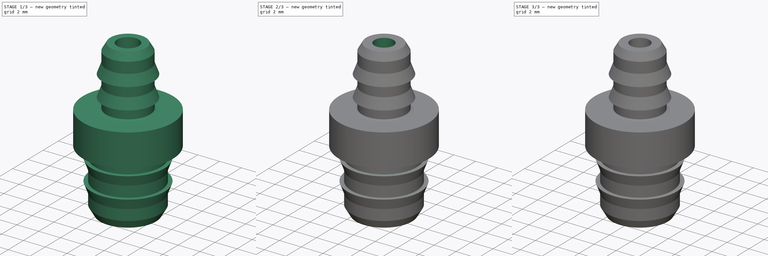
[diagram: build sequence overview — one tinted view per stage of 3, left to right]
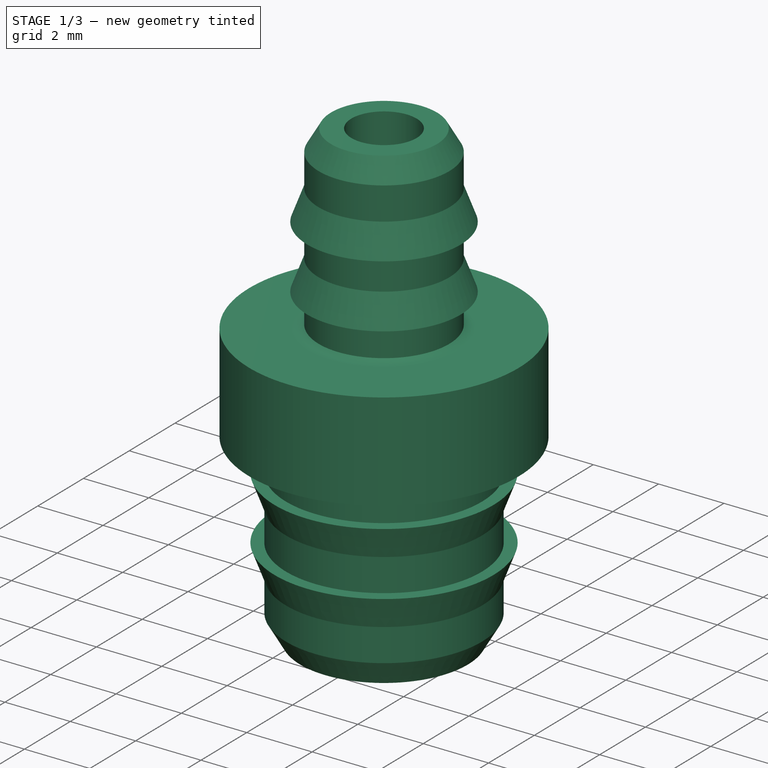
[diagram: stage 1 of 3 — iso view after this stage's code; geometry added in this stage tinted green]
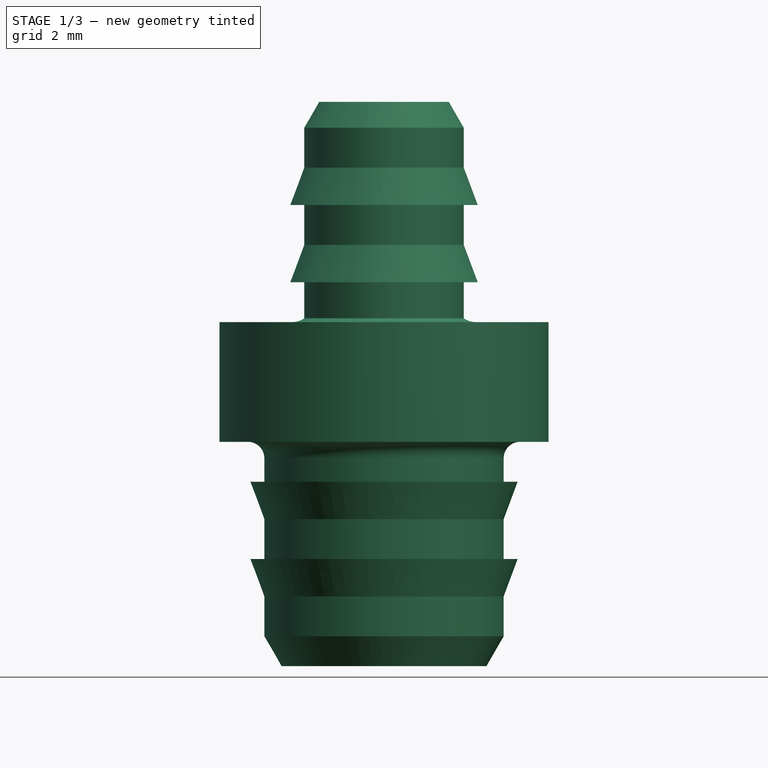
[diagram: stage 1 of 3 — front view after this stage's code; geometry added in this stage tinted green]
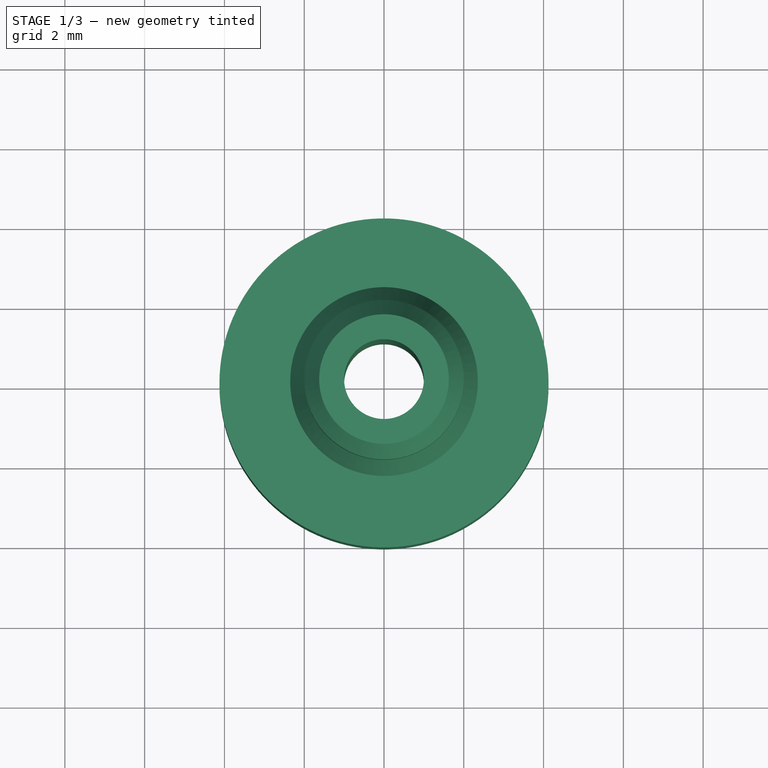
[diagram: stage 1 of 3 — top view after this stage's code; geometry added in this stage tinted green]
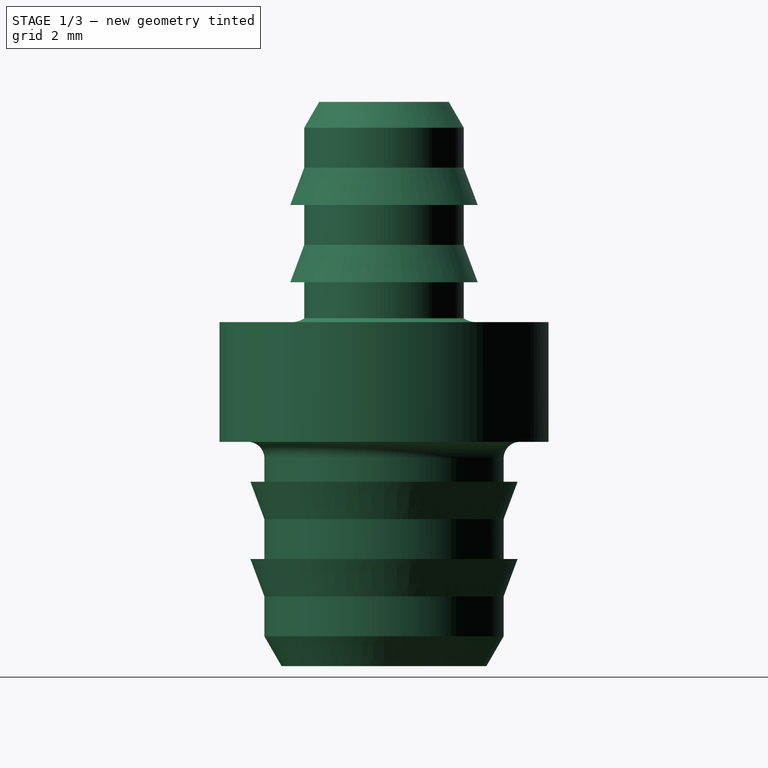
[diagram: stage 1 of 3 — right view after this stage's code; geometry added in this stage tinted green]
FCSTD DOCUMENT  (FreeCAD 0.22R36807 (Git))
Label: tubing connectors
License: Creative Commons Attribution 4.0
LicenseURL: https://creativecommons.org/licenses/by/4.0/
objects: Spreadsheet::Sheet×6, Sketcher::SketchObject×6, PartDesign::Revolution×6, PartDesign::Body×6
note: 24 computed .brp shape members not serialized (recipe doc carries the construction recipe); baked Part::Feature solids carry a one-line shape summary decoded from their .brp

FEATURE [PartDesign::Body] Body004  label="3mm to 6mm barbed connector"
  Group = -> [Revolution004,Sketch005]
  Origin = -> Origin004
  Tip = -> Revolution004
FEATURE [Spreadsheet::Sheet] Spreadsheet003  label="3mm to 6mm barbed connector data"
  cells = A1='end_diameter_1; B1(end_diameter_1)=3.25; A2='end_diameter_2; B2(end_diameter_2)=6; A3='wall_thickness; B3(wall_thickness)=0.75; A4='barb_height; B4(barb_height)=0.35; A5='tubing_diameter_stretch; B5(tubing_diameter_stretch)=0.1
FEATURE [Sketcher::SketchObject] Sketch006
  FullyConstrained = false
  Placement = pos=(0,0,0) rot=(1,0,0;1.5708rad)
  expr: Constraints[25] = <<3.5mm to 6mm barbed connector data>>.wall_thickness
  expr: Constraints[41] = Spreadsheet004.wall_thickness / 2
  expr: Constraints[42] = Spreadsheet004.barb_height
  expr: Constraints[43] = Spreadsheet004.wall_thickness * 4 / 3
  expr: Constraints[48] = Spreadsheet004.wall_thickness * 4 / 3
  expr: Constraints[57] = <<3.5mm to 6mm barbed connector data>>.end_diameter_2 / 2
  expr: Constraints[58] = <<3.5mm to 6mm barbed connector data>>.wall_thickness
  expr: Constraints[59] = <<3.5mm to 6mm barbed connector data>>.wall_thickness
  expr: Constraints[60] = <<3.5mm to 6mm barbed connector data>>.end_diameter_1 / 2
  sketch-geometry (30):
    g0: LineSegment StartX=2.25 StartY=0 StartZ=0 EndX=2.56699 EndY=0 EndZ=0
    g1: LineSegment StartX=3 StartY=0.75 StartZ=0 EndX=3 EndY=1.75 EndZ=0
    g2: LineSegment StartX=3 StartY=1.75 StartZ=0 EndX=3.35 EndY=2.68675 EndZ=0
    g3: LineSegment StartX=3.35 StartY=2.68675 StartZ=0 EndX=3 EndY=2.68675 EndZ=0
    g4: LineSegment StartX=3 StartY=2.68675 StartZ=0 EndX=3 EndY=3.68675 EndZ=0
    g5: LineSegment StartX=3 StartY=3.68675 StartZ=0 EndX=3.35 EndY=4.6235 EndZ=0
    g6: LineSegment StartX=3.35 StartY=4.6235 StartZ=0 EndX=3 EndY=4.6235 EndZ=0
    g7: LineSegment StartX=3 StartY=4.6235 StartZ=0 EndX=3 EndY=5.21177 EndZ=0
    g8: LineSegment StartX=3.41173 StartY=5.6235 StartZ=0 EndX=3.4954 EndY=5.6235 EndZ=0
    g9: LineSegment StartX=3.54603 StartY=8.6235 StartZ=0 EndX=2.31649 EndY=8.6235 EndZ=0
    g10: LineSegment StartX=1.75 StartY=9.18999 StartZ=0 EndX=1.75 EndY=9.6235 EndZ=0
    g11: LineSegment StartX=1.75 StartY=9.6235 StartZ=0 EndX=2.1 EndY=9.6235 EndZ=0
    g12: LineSegment StartX=2.1 StartY=9.6235 StartZ=0 EndX=1.75 EndY=10.5602 EndZ=0
    g13: LineSegment StartX=1.75 StartY=10.5602 StartZ=0 EndX=1.75 EndY=11.5602 EndZ=0
    g14: LineSegment StartX=1.75 StartY=11.5602 StartZ=0 EndX=2.1 EndY=11.5602 EndZ=0
    g15: LineSegment StartX=2.1 StartY=11.5602 StartZ=0 EndX=1.75 EndY=12.497 EndZ=0
    g16: LineSegment StartX=1.75 StartY=12.497 StartZ=0 EndX=1.75 EndY=13.497 EndZ=0
    g17: LineSegment StartX=1.375 StartY=14.1465 StartZ=0 EndX=1 EndY=14.1465 EndZ=0
    g18: LineSegment StartX=2.25 StartY=5.6235 StartZ=0 EndX=2.25 EndY=0 EndZ=0
    g19: LineSegment StartX=1.375 StartY=14.1465 StartZ=0 EndX=1.75 EndY=13.497 EndZ=0
    g20: LineSegment StartX=2.56699 StartY=0 StartZ=0 EndX=3 EndY=0.75 EndZ=0
    g21: LineSegment StartX=2.25 StartY=5.6235 StartZ=0 EndX=1 EndY=6.6235 EndZ=0
    g22: LineSegment StartX=1 StartY=6.6235 StartZ=0 EndX=1 EndY=14.1465 EndZ=0
    g23: ArcOfCircle CenterX=2.31649 CenterY=9.18999 CenterZ=0 NormalX=0 NormalY=0 NormalZ=1 AngleXU=0 Radius=0.566492 StartAngle=3.14159 EndAngle=4.71239
    g24: GeomPoint X=1.75 Y=8.6235 Z=0
    g25: LineSegment StartX=4.125 StartY=6.2531 StartZ=0 EndX=4.125 EndY=8.04453 EndZ=0
    g26: ArcOfCircle CenterX=3.41173 CenterY=5.21177 CenterZ=0 NormalX=0 NormalY=0 NormalZ=1 AngleXU=0 Radius=0.411733 StartAngle=1.5708 EndAngle=3.14159
    g27: GeomPoint X=3 Y=5.6235 Z=0
    g28: ArcOfCircle CenterX=3.4954 CenterY=6.2531 CenterZ=0 NormalX=0 NormalY=0 NormalZ=1 AngleXU=0 Radius=0.629602 StartAngle=4.71239 EndAngle=6.28319
    g29: ArcOfCircle CenterX=3.54603 CenterY=8.04453 CenterZ=0 NormalX=0 NormalY=0 NormalZ=1 AngleXU=0 Radius=0.578973 StartAngle=0 EndAngle=1.5708
  constraints (73):
    c: Vertical(g1)
    c: Coincident(g1,g2)
    c: Coincident(g2,g3)
    c: Horizontal(g3)
    c: Coincident(g3,g4)
    c: Vertical(g4)
    c: Coincident(g4,g5)
    c: Coincident(g5,g6)
    c: Horizontal(g6)
    c: Coincident(g6,g7)
    c: Vertical(g7)
    c: Horizontal(g8)
    c: Horizontal(g9)
    c: Vertical(g10)
    c: Coincident(g10,g11)
    c: Horizontal(g11)
    c: Coincident(g11,g12)
    c: Coincident(g12,g13)
    c: Vertical(g13)
    c: Coincident(g13,g14)
    c: Horizontal(g14)
    c: Coincident(g14,g15)
    c: Coincident(g15,g16)
    c: Vertical(g16)
    c: Vertical(g18)
    c: DistanceX(g17,g16) = 0.75
    c: Vertical(g13,g15)
    c: Vertical(g1,g3)
    c: Vertical(g4,g6)
    c: Vertical(g12,g10)
    c: Vertical(g5,g2)
    c: Vertical(g11,g14)
    c: Equal(g6,g11)
    c: Equal(g1,g4)
    c: Equal(g16,g13)
    c: Equal(g15,g12)
    c: Equal(g12,g5)
    c: Equal(g5,g2)
    c: Horizontal(g17)
    c: Coincident(g17,g19)
    c: Coincident(g19,g16)
    c: DistanceX(g17,g17) = 0.375
    c: DistanceX(g14,g14) = 0.35
    c: DistanceY(g1,g1) = 1
    c: Coincident(g0,g20)
    c: Coincident(g20,g1)
    c: Horizontal(g0)
    c: Angle(g-1,g20) = 1.0472
    c: Distance(g2) = 1
    c: Angle(g17,g19) = 2.0944
    c: Horizontal(g-1,g0)
    c: Coincident(g18,g0)
    c: Horizontal(g18,g27)
    c: Coincident(g18,g21)
    c: Coincident(g21,g22)
    c: Coincident(g22,g17)
    c: Vertical(g22)
    c: DistanceX(g-1,g1) = 3
    c: DistanceX(g0,g1) = 0.75
    c: DistanceY(g0,g1) = 0.75
    c: DistanceX(g-1,g16) = 1.75
    c: PointOnObject(g24,g10)
    c: PointOnObject(g24,g9)
    c: Tangent(g10,g23) = 1.5708
    c: Tangent(g9,g23) = 1.5708
    c: PointOnObject(g27,g7)
    c: PointOnObject(g27,g8)
    c: Tangent(g7,g26) = 1.5708
    c: Tangent(g8,g26) = 1.5708
    c: Tangent(g8,g28) = -1.5708
    c: Tangent(g25,g28) = -1.5708
    c: Tangent(g25,g29) = -1.5708
    c: Tangent(g9,g29) = -1.5708
FEATURE [PartDesign::Revolution] Revolution005
  Angle = 360
  Angle2 = 60
  Axis = (0,2e-16,1)
  Base = (0,0,0)
  Placement = pos=(0,0,0) rot=(1,0,0;1.5708rad)
  Profile = -> Sketch006
  ReferenceAxis = -> Sketch006 [V_Axis]
  Reversed = true
  Suppressed = false
  Type = 0
FEATURE [PartDesign::Body] Body005  label="3.5mm to 6mm barbed connector"
  Group = -> [Revolution005,Sketch006]
  Origin = -> Origin005
  Tip = -> Revolution005
FEATURE [Spreadsheet::Sheet] Spreadsheet004  label="3.5mm to 6mm barbed connector data"
  cells = A1='end_diameter_1; B1(end_diameter_1)=3.5; A2='end_diameter_2; B2(end_diameter_2)=6; A3='wall_thickness; B3(wall_thickness)=0.75; A4='barb_height; B4(barb_height)=0.35; A5='tubing_diameter_stretch; B5(tubing_diameter_stretch)=0.1
FEATURE [Sketcher::SketchObject] Sketch007
  FullyConstrained = true
  Placement = pos=(0,0,0) rot=(1,0,0;1.5708rad)
  expr: Constraints[36] = <<4mm to 6mm barbed connector data>>.wall_thickness
  expr: Constraints[60] = Spreadsheet005.wall_thickness / 2
  expr: Constraints[61] = Spreadsheet005.barb_height
  expr: Constraints[62] = Spreadsheet005.wall_thickness * 4 / 3
  expr: Constraints[67] = Spreadsheet005.wall_thickness * 4 / 3
  expr: Constraints[76] = <<4mm to 6mm barbed connector data>>.end_diameter_2 / 2
  expr: Constraints[77] = <<4mm to 6mm barbed connector data>>.wall_thickness
  expr: Constraints[78] = <<4mm to 6mm barbed connector data>>.wall_thickness
  expr: Constraints[79] = <<4mm to 6mm barbed connector data>>.end_diameter_1 / 2
  expr: Constraints[83] = <<4mm to 6mm barbed connector data>>.end_diameter_2 / 2 + <<4mm to 6mm barbed connector data>>.wall_thickness * 1.5
  sketch-geometry (28):
    g0: LineSegment StartX=2.25 StartY=0 StartZ=0 EndX=2.56699 EndY=0 EndZ=0
    g1: LineSegment StartX=3 StartY=0.75 StartZ=0 EndX=3 EndY=1.75 EndZ=0
    g2: LineSegment StartX=3 StartY=1.75 StartZ=0 EndX=3.35 EndY=2.68675 EndZ=0
    g3: LineSegment StartX=3.35 StartY=2.68675 StartZ=0 EndX=3 EndY=2.68675 EndZ=0
    g4: LineSegment StartX=3 StartY=2.68675 StartZ=0 EndX=3 EndY=3.68675 EndZ=0
    g5: LineSegment StartX=3 StartY=3.68675 StartZ=0 EndX=3.35 EndY=4.6235 EndZ=0
    g6: LineSegment StartX=3.35 StartY=4.6235 StartZ=0 EndX=3 EndY=4.6235 EndZ=0
    g7: LineSegment StartX=3 StartY=4.6235 StartZ=0 EndX=3 EndY=5.6235 EndZ=0
    g8: LineSegment StartX=3 StartY=5.6235 StartZ=0 EndX=4.125 EndY=5.6235 EndZ=0
    g9: LineSegment StartX=4.125 StartY=5.6235 StartZ=0 EndX=4.125 EndY=6.6235 EndZ=0
    g10: LineSegment StartX=4.125 StartY=6.6235 StartZ=0 EndX=3 EndY=6.6235 EndZ=0
    g11: LineSegment StartX=3 StartY=6.6235 StartZ=0 EndX=3 EndY=7.6235 EndZ=0
    g12: LineSegment StartX=3 StartY=7.6235 StartZ=0 EndX=4.125 EndY=7.6235 EndZ=0
    g13: LineSegment StartX=4.125 StartY=7.6235 StartZ=0 EndX=4.125 EndY=8.6235 EndZ=0
    g14: LineSegment StartX=4.125 StartY=8.6235 StartZ=0 EndX=2 EndY=8.6235 EndZ=0
    g15: LineSegment StartX=2 StartY=8.6235 StartZ=0 EndX=2 EndY=9.6235 EndZ=0
    g16: LineSegment StartX=2 StartY=9.6235 StartZ=0 EndX=2.35 EndY=9.6235 EndZ=0
    g17: LineSegment StartX=2.35 StartY=9.6235 StartZ=0 EndX=2 EndY=10.5602 EndZ=0
    g18: LineSegment StartX=2 StartY=10.5602 StartZ=0 EndX=2 EndY=11.5602 EndZ=0
    g19: LineSegment StartX=2 StartY=11.5602 StartZ=0 EndX=2.35 EndY=11.5602 EndZ=0
    g20: LineSegment StartX=2.35 StartY=11.5602 StartZ=0 EndX=2 EndY=12.497 EndZ=0
    g21: LineSegment StartX=2 StartY=12.497 StartZ=0 EndX=2 EndY=13.497 EndZ=0
    g22: LineSegment StartX=1.625 StartY=14.1465 StartZ=0 EndX=1.25 EndY=14.1465 EndZ=0
    g23: LineSegment StartX=2.25 StartY=5.6235 StartZ=0 EndX=2.25 EndY=0 EndZ=0
    g24: LineSegment StartX=1.625 StartY=14.1465 StartZ=0 EndX=2 EndY=13.497 EndZ=0
    g25: LineSegment StartX=2.56699 StartY=0 StartZ=0 EndX=3 EndY=0.75 EndZ=0
    g26: LineSegment StartX=2.25 StartY=5.6235 StartZ=0 EndX=1.25 EndY=6.6235 EndZ=0
    g27: LineSegment StartX=1.25 StartY=6.6235 StartZ=0 EndX=1.25 EndY=14.1465 EndZ=0
  constraints (84):
    c: Vertical(g1)
    c: Coincident(g1,g2)
    c: Coincident(g2,g3)
    c: Horizontal(g3)
    c: Coincident(g3,g4)
    c: Vertical(g4)
    c: Coincident(g4,g5)
    c: Coincident(g5,g6)
    c: Horizontal(g6)
    c: Coincident(g6,g7)
    c: Vertical(g7)
    c: Coincident(g7,g8)
    c: Horizontal(g8)
    c: Coincident(g8,g9)
    c: Coincident(g9,g10)
    c: Horizontal(g10)
    c: Coincident(g10,g11)
    c: Coincident(g11,g12)
    c: Horizontal(g12)
    c: Coincident(g12,g13)
    c: Vertical(g13)
    c: Coincident(g13,g14)
    c: Horizontal(g14)
    c: Coincident(g14,g15)
    c: Vertical(g15)
    c: Coincident(g15,g16)
    c: Horizontal(g16)
    c: Coincident(g16,g17)
    c: Coincident(g17,g18)
    c: Vertical(g18)
    c: Coincident(g18,g19)
    c: Horizontal(g19)
    c: Coincident(g19,g20)
    c: Coincident(g20,g21)
    c: Vertical(g21)
    c: Vertical(g23)
    c: DistanceX(g22,g21) = 0.75
    c: Vertical(g18,g20)
    c: Vertical(g1,g3)
    c: Vertical(g4,g6)
    c: Vertical(g17,g15)
    c: Vertical(g11)
    c: Vertical(g5,g2)
    c: Vertical(g16,g19)
    c: Equal(g6,g16)
    c: Vertical(g9)
    c: Vertical(g9,g12)
    c: Equal(g9,g13)
    c: Equal(g1,g4)
    c: Equal(g7,g4)
    c: Equal(g21,g18)
    c: Equal(g18,g15)
    c: Equal(g15,g7)
    c: Equal(g20,g17)
    c: Equal(g17,g5)
    c: Equal(g5,g2)
    c: Equal(g13,g7)
    c: Horizontal(g22)
    c: Coincident(g22,g24)
    c: Coincident(g24,g21)
    c: DistanceX(g22,g22) = 0.375
    c: DistanceX(g19,g19) = 0.35
    c: DistanceY(g1,g1) = 1
    c: Coincident(g0,g25)
    c: Coincident(g25,g1)
    c: Horizontal(g0)
    c: Angle(g-1,g25) = 1.0472
    c: Distance(g2) = 1
    c: Angle(g22,g24) = 2.0944
    c: Horizontal(g-1,g0)
    c: Coincident(g23,g0)
    c: Horizontal(g23,g7)
    c: Coincident(g23,g26)
    c: Coincident(g26,g27)
    c: Coincident(g27,g22)
    c: Vertical(g27)
    c: DistanceX(g-1,g1) = 3
    c: DistanceX(g0,g1) = 0.75
    c: DistanceY(g0,g1) = 0.75
    c: DistanceX(g-1,g21) = 2
    c: Vertical(g7,g11)
    c: Equal(g11,g7)
    c: Horizontal(g26,g10)
    c: DistanceX(g-1,g13) = 4.125
FEATURE [PartDesign::Revolution] Revolution006
  Angle = 360
  Angle2 = 60
  Axis = (0,2e-16,1)
  Base = (0,0,0)
  Placement = pos=(0,0,0) rot=(1,0,0;1.5708rad)
  Profile = -> Sketch007
  ReferenceAxis = -> Sketch007 [V_Axis]
  Reversed = true
  Suppressed = false
  Type = 0
FEATURE [PartDesign::Body] Body006  label="4mm to 6mm barbed connector"
  Group = -> [Revolution006,Sketch007]
  Origin = -> Origin006
  Tip = -> Revolution006
FEATURE [Spreadsheet::Sheet] Spreadsheet005  label="4mm to 6mm barbed connector data"
  cells = A1='end_diameter_1; B1(end_diameter_1)=4; A2='end_diameter_2; B2(end_diameter_2)=6; A3='wall_thickness; B3(wall_thickness)=0.75; A4='barb_height; B4(barb_height)=0.35; A5='tubing_diameter_stretch; B5(tubing_diameter_stretch)=0.1
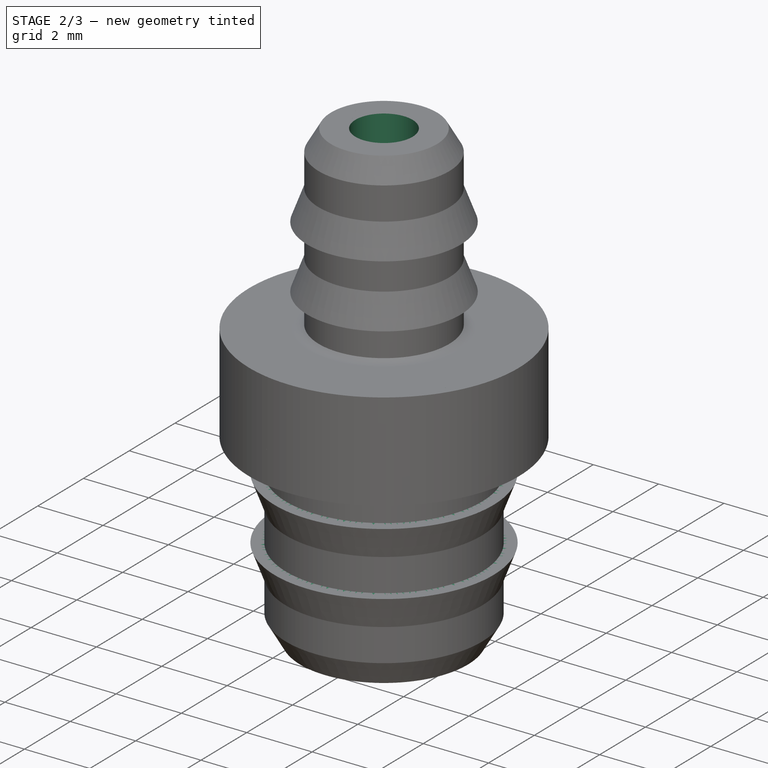
[diagram: stage 2 of 3 — iso view after this stage's code; geometry added in this stage tinted green]
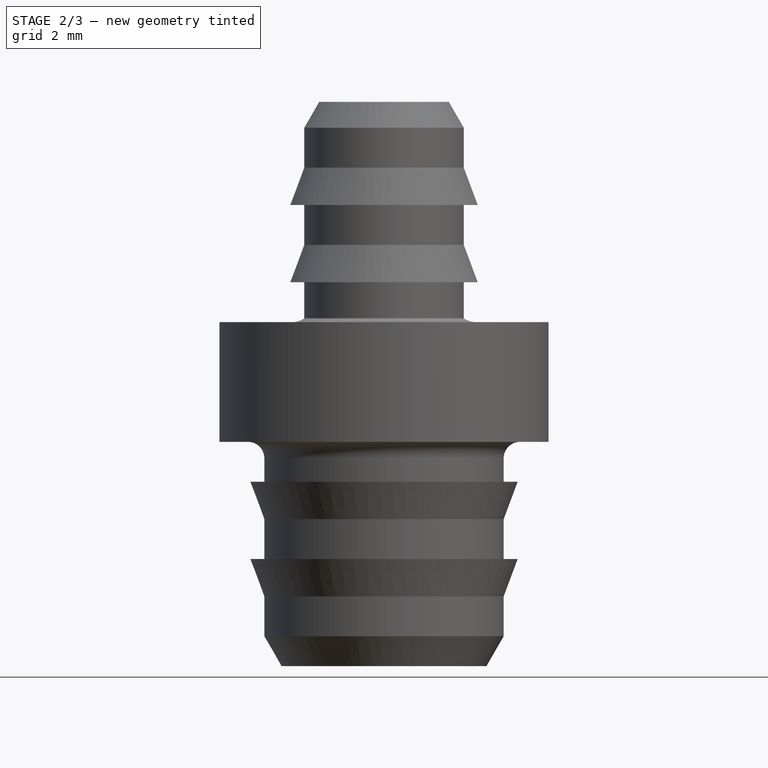
[diagram: stage 2 of 3 — front view after this stage's code; geometry added in this stage tinted green]
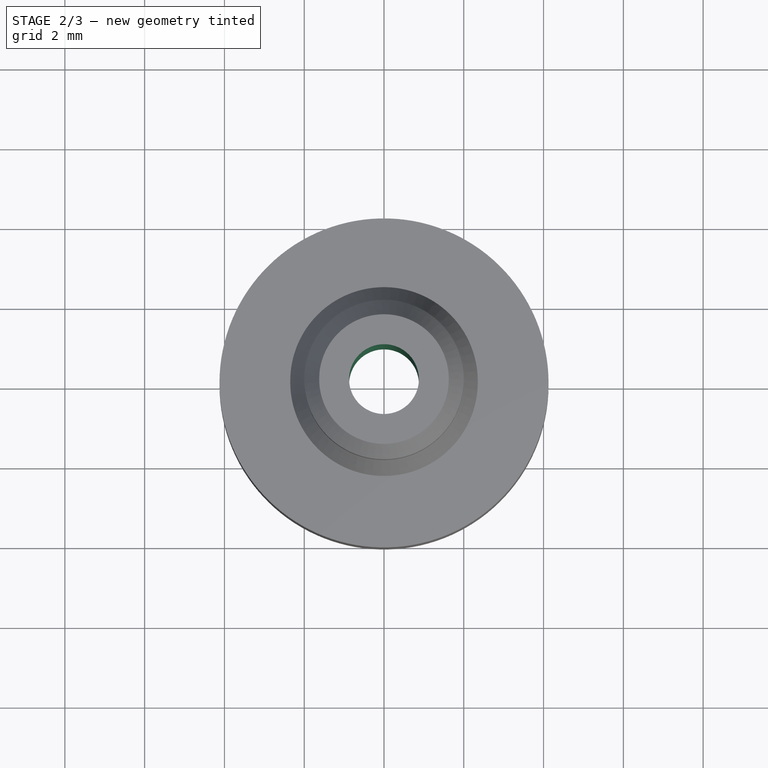
[diagram: stage 2 of 3 — top view after this stage's code; geometry added in this stage tinted green]
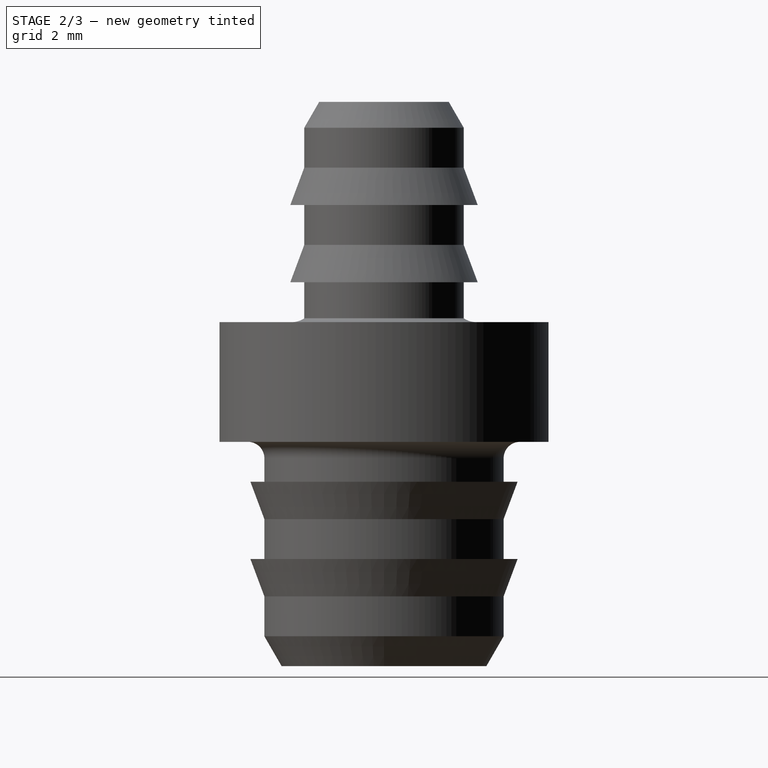
[diagram: stage 2 of 3 — right view after this stage's code; geometry added in this stage tinted green]
FEATURE [PartDesign::Body] Body002  label="3mm to 5.25mm barbed connector"
  Group = -> [Revolution002,Sketch003]
  Origin = -> Origin002
  Tip = -> Revolution002
FEATURE [Spreadsheet::Sheet] Spreadsheet001  label="3mm to 5.25mm barbed connector data"
  cells = A1='end_diameter_1; B1(end_diameter_1)=3.25; A2='end_diameter_2; B2(end_diameter_2)=5.25; A3='wall_thickness; B3(wall_thickness)=0.75; A4='barb_height; B4(barb_height)=0.35; A5='tubing_diameter_stretch; B5(tubing_diameter_stretch)=0.1
FEATURE [Sketcher::SketchObject] Sketch004
  FullyConstrained = true
  Placement = pos=(0,0,0) rot=(1,0,0;1.5708rad)
  expr: Constraints[36] = <<3mm to 5.5mm barbed connector data>>.wall_thickness
  expr: Constraints[60] = Spreadsheet002.wall_thickness / 2
  expr: Constraints[61] = Spreadsheet002.barb_height
  expr: Constraints[62] = Spreadsheet002.wall_thickness * 4 / 3
  expr: Constraints[67] = Spreadsheet002.wall_thickness * 4 / 3
  expr: Constraints[76] = <<3mm to 5.5mm barbed connector data>>.end_diameter_2 / 2
  expr: Constraints[77] = <<3mm to 5.5mm barbed connector data>>.wall_thickness
  expr: Constraints[78] = <<3mm to 5.5mm barbed connector data>>.wall_thickness
  expr: Constraints[79] = <<3mm to 5.5mm barbed connector data>>.end_diameter_1 / 2
  expr: Constraints[83] = <<3mm to 5.5mm barbed connector data>>.end_diameter_2 / 2 + <<3mm to 5.5mm barbed connector data>>.wall_thickness * 1.5
  sketch-geometry (28):
    g0: LineSegment StartX=2 StartY=0 StartZ=0 EndX=2.31699 EndY=0 EndZ=0
    g1: LineSegment StartX=2.75 StartY=0.75 StartZ=0 EndX=2.75 EndY=1.75 EndZ=0
    g2: LineSegment StartX=2.75 StartY=1.75 StartZ=0 EndX=3.1 EndY=2.68675 EndZ=0
    g3: LineSegment StartX=3.1 StartY=2.68675 StartZ=0 EndX=2.75 EndY=2.68675 EndZ=0
    g4: LineSegment StartX=2.75 StartY=2.68675 StartZ=0 EndX=2.75 EndY=3.68675 EndZ=0
    g5: LineSegment StartX=2.75 StartY=3.68675 StartZ=0 EndX=3.1 EndY=4.6235 EndZ=0
    g6: LineSegment StartX=3.1 StartY=4.6235 StartZ=0 EndX=2.75 EndY=4.6235 EndZ=0
    g7: LineSegment StartX=2.75 StartY=4.6235 StartZ=0 EndX=2.75 EndY=5.6235 EndZ=0
    g8: LineSegment StartX=2.75 StartY=5.6235 StartZ=0 EndX=3.875 EndY=5.6235 EndZ=0
    g9: LineSegment StartX=3.875 StartY=5.6235 StartZ=0 EndX=3.875 EndY=6.6235 EndZ=0
    g10: LineSegment StartX=3.875 StartY=6.6235 StartZ=0 EndX=2.75 EndY=6.6235 EndZ=0
    g11: LineSegment StartX=2.75 StartY=6.6235 StartZ=0 EndX=2.75 EndY=7.6235 EndZ=0
    g12: LineSegment StartX=2.75 StartY=7.6235 StartZ=0 EndX=3.875 EndY=7.6235 EndZ=0
    g13: LineSegment StartX=3.875 StartY=7.6235 StartZ=0 EndX=3.875 EndY=8.6235 EndZ=0
    g14: LineSegment StartX=3.875 StartY=8.6235 StartZ=0 EndX=1.625 EndY=8.6235 EndZ=0
    g15: LineSegment StartX=1.625 StartY=8.6235 StartZ=0 EndX=1.625 EndY=9.6235 EndZ=0
    g16: LineSegment StartX=1.625 StartY=9.6235 StartZ=0 EndX=1.975 EndY=9.6235 EndZ=0
    g17: LineSegment StartX=1.975 StartY=9.6235 StartZ=0 EndX=1.625 EndY=10.5602 EndZ=0
    g18: LineSegment StartX=1.625 StartY=10.5602 StartZ=0 EndX=1.625 EndY=11.5602 EndZ=0
    g19: LineSegment StartX=1.625 StartY=11.5602 StartZ=0 EndX=1.975 EndY=11.5602 EndZ=0
    g20: LineSegment StartX=1.975 StartY=11.5602 StartZ=0 EndX=1.625 EndY=12.497 EndZ=0
    g21: LineSegment StartX=1.625 StartY=12.497 StartZ=0 EndX=1.625 EndY=13.497 EndZ=0
    g22: LineSegment StartX=1.25 StartY=14.1465 StartZ=0 EndX=0.875 EndY=14.1465 EndZ=0
    g23: LineSegment StartX=2 StartY=5.6235 StartZ=0 EndX=2 EndY=0 EndZ=0
    g24: LineSegment StartX=1.25 StartY=14.1465 StartZ=0 EndX=1.625 EndY=13.497 EndZ=0
    g25: LineSegment StartX=2.31699 StartY=0 StartZ=0 EndX=2.75 EndY=0.75 EndZ=0
    g26: LineSegment StartX=2 StartY=5.6235 StartZ=0 EndX=0.875 EndY=6.6235 EndZ=0
    g27: LineSegment StartX=0.875 StartY=6.6235 StartZ=0 EndX=0.875 EndY=14.1465 EndZ=0
  constraints (84):
    c: Vertical(g1)
    c: Coincident(g1,g2)
    c: Coincident(g2,g3)
    c: Horizontal(g3)
    c: Coincident(g3,g4)
    c: Vertical(g4)
    c: Coincident(g4,g5)
    c: Coincident(g5,g6)
    c: Horizontal(g6)
    c: Coincident(g6,g7)
    c: Vertical(g7)
    c: Coincident(g7,g8)
    c: Horizontal(g8)
    c: Coincident(g8,g9)
    c: Coincident(g9,g10)
    c: Horizontal(g10)
    c: Coincident(g10,g11)
    c: Coincident(g11,g12)
    c: Horizontal(g12)
    c: Coincident(g12,g13)
    c: Vertical(g13)
    c: Coincident(g13,g14)
    c: Horizontal(g14)
    c: Coincident(g14,g15)
    c: Vertical(g15)
    c: Coincident(g15,g16)
    c: Horizontal(g16)
    c: Coincident(g16,g17)
    c: Coincident(g17,g18)
    c: Vertical(g18)
    c: Coincident(g18,g19)
    c: Horizontal(g19)
    c: Coincident(g19,g20)
    c: Coincident(g20,g21)
    c: Vertical(g21)
    c: Vertical(g23)
    c: DistanceX(g22,g21) = 0.75
    c: Vertical(g18,g20)
    c: Vertical(g1,g3)
    c: Vertical(g4,g6)
    c: Vertical(g17,g15)
    c: Vertical(g11)
    c: Vertical(g5,g2)
    c: Vertical(g16,g19)
    c: Equal(g6,g16)
    c: Vertical(g9)
    c: Vertical(g9,g12)
    c: Equal(g9,g13)
    c: Equal(g1,g4)
    c: Equal(g7,g4)
    c: Equal(g21,g18)
    c: Equal(g18,g15)
    c: Equal(g15,g7)
    c: Equal(g20,g17)
    c: Equal(g17,g5)
    c: Equal(g5,g2)
    c: Equal(g13,g7)
    c: Horizontal(g22)
    c: Coincident(g22,g24)
    c: Coincident(g24,g21)
    c: DistanceX(g22,g22) = 0.375
    c: DistanceX(g19,g19) = 0.35
    c: DistanceY(g1,g1) = 1
    c: Coincident(g0,g25)
    c: Coincident(g25,g1)
    c: Horizontal(g0)
    c: Angle(g-1,g25) = 1.0472
    c: Distance(g2) = 1
    c: Angle(g22,g24) = 2.0944
    c: Horizontal(g-1,g0)
    c: Coincident(g23,g0)
    c: Horizontal(g23,g7)
    c: Coincident(g23,g26)
    c: Coincident(g26,g27)
    c: Coincident(g27,g22)
    c: Vertical(g27)
    c: DistanceX(g-1,g1) = 2.75
    c: DistanceX(g0,g1) = 0.75
    c: DistanceY(g0,g1) = 0.75
    c: DistanceX(g-1,g21) = 1.625
    c: Vertical(g7,g11)
    c: Equal(g11,g7)
    c: Horizontal(g26,g10)
    c: DistanceX(g-1,g13) = 3.875
FEATURE [PartDesign::Revolution] Revolution003
  Angle = 360
  Angle2 = 60
  Axis = (0,2e-16,1)
  Base = (0,0,0)
  Placement = pos=(0,0,0) rot=(1,0,0;1.5708rad)
  Profile = -> Sketch004
  ReferenceAxis = -> Sketch004 [V_Axis]
  Reversed = true
  Suppressed = false
  Type = 0
FEATURE [PartDesign::Body] Body003  label="3mm to 5.5mm barbed connector"
  Group = -> [Revolution003,Sketch004]
  Origin = -> Origin003
  Tip = -> Revolution003
FEATURE [Spreadsheet::Sheet] Spreadsheet002  label="3mm to 5.5mm barbed connector data"
  cells = A1='end_diameter_1; B1(end_diameter_1)=3.25; A2='end_diameter_2; B2(end_diameter_2)=5.5; A3='wall_thickness; B3(wall_thickness)=0.75; A4='barb_height; B4(barb_height)=0.35; A5='tubing_diameter_stretch; B5(tubing_diameter_stretch)=0.1
FEATURE [Sketcher::SketchObject] Sketch005
  FullyConstrained = true
  Placement = pos=(0,0,0) rot=(1,0,0;1.5708rad)
  expr: Constraints[36] = <<3mm to 6mm barbed connector data>>.wall_thickness
  expr: Constraints[60] = Spreadsheet003.wall_thickness / 2
  expr: Constraints[61] = Spreadsheet003.barb_height
  expr: Constraints[62] = Spreadsheet003.wall_thickness * 4 / 3
  expr: Constraints[67] = Spreadsheet003.wall_thickness * 4 / 3
  expr: Constraints[76] = <<3mm to 6mm barbed connector data>>.end_diameter_2 / 2
  expr: Constraints[77] = <<3mm to 6mm barbed connector data>>.wall_thickness
  expr: Constraints[78] = <<3mm to 6mm barbed connector data>>.wall_thickness
  expr: Constraints[79] = <<3mm to 6mm barbed connector data>>.end_diameter_1 / 2
  expr: Constraints[83] = <<3mm to 6mm barbed connector data>>.end_diameter_2 / 2 + <<3mm to 6mm barbed connector data>>.wall_thickness * 1.5
  sketch-geometry (28):
    g0: LineSegment StartX=2.25 StartY=0 StartZ=0 EndX=2.56699 EndY=0 EndZ=0
    g1: LineSegment StartX=3 StartY=0.75 StartZ=0 EndX=3 EndY=1.75 EndZ=0
    g2: LineSegment StartX=3 StartY=1.75 StartZ=0 EndX=3.35 EndY=2.68675 EndZ=0
    g3: LineSegment StartX=3.35 StartY=2.68675 StartZ=0 EndX=3 EndY=2.68675 EndZ=0
    g4: LineSegment StartX=3 StartY=2.68675 StartZ=0 EndX=3 EndY=3.68675 EndZ=0
    g5: LineSegment StartX=3 StartY=3.68675 StartZ=0 EndX=3.35 EndY=4.6235 EndZ=0
    g6: LineSegment StartX=3.35 StartY=4.6235 StartZ=0 EndX=3 EndY=4.6235 EndZ=0
    g7: LineSegment StartX=3 StartY=4.6235 StartZ=0 EndX=3 EndY=5.6235 EndZ=0
    g8: LineSegment StartX=3 StartY=5.6235 StartZ=0 EndX=4.125 EndY=5.6235 EndZ=0
    g9: LineSegment StartX=4.125 StartY=5.6235 StartZ=0 EndX=4.125 EndY=6.6235 EndZ=0
    g10: LineSegment StartX=4.125 StartY=6.6235 StartZ=0 EndX=3 EndY=6.6235 EndZ=0
    g11: LineSegment StartX=3 StartY=6.6235 StartZ=0 EndX=3 EndY=7.6235 EndZ=0
    g12: LineSegment StartX=3 StartY=7.6235 StartZ=0 EndX=4.125 EndY=7.6235 EndZ=0
    g13: LineSegment StartX=4.125 StartY=7.6235 StartZ=0 EndX=4.125 EndY=8.6235 EndZ=0
    g14: LineSegment StartX=4.125 StartY=8.6235 StartZ=0 EndX=1.625 EndY=8.6235 EndZ=0
    g15: LineSegment StartX=1.625 StartY=8.6235 StartZ=0 EndX=1.625 EndY=9.6235 EndZ=0
    g16: LineSegment StartX=1.625 StartY=9.6235 StartZ=0 EndX=1.975 EndY=9.6235 EndZ=0
    g17: LineSegment StartX=1.975 StartY=9.6235 StartZ=0 EndX=1.625 EndY=10.5602 EndZ=0
    g18: LineSegment StartX=1.625 StartY=10.5602 StartZ=0 EndX=1.625 EndY=11.5602 EndZ=0
    g19: LineSegment StartX=1.625 StartY=11.5602 StartZ=0 EndX=1.975 EndY=11.5602 EndZ=0
    g20: LineSegment StartX=1.975 StartY=11.5602 StartZ=0 EndX=1.625 EndY=12.497 EndZ=0
    g21: LineSegment StartX=1.625 StartY=12.497 StartZ=0 EndX=1.625 EndY=13.497 EndZ=0
    g22: LineSegment StartX=1.25 StartY=14.1465 StartZ=0 EndX=0.875 EndY=14.1465 EndZ=0
    g23: LineSegment StartX=2.25 StartY=5.6235 StartZ=0 EndX=2.25 EndY=0 EndZ=0
    g24: LineSegment StartX=1.25 StartY=14.1465 StartZ=0 EndX=1.625 EndY=13.497 EndZ=0
    g25: LineSegment StartX=2.56699 StartY=0 StartZ=0 EndX=3 EndY=0.75 EndZ=0
    g26: LineSegment StartX=2.25 StartY=5.6235 StartZ=0 EndX=0.875 EndY=6.6235 EndZ=0
    g27: LineSegment StartX=0.875 StartY=6.6235 StartZ=0 EndX=0.875 EndY=14.1465 EndZ=0
  constraints (84):
    c: Vertical(g1)
    c: Coincident(g1,g2)
    c: Coincident(g2,g3)
    c: Horizontal(g3)
    c: Coincident(g3,g4)
    c: Vertical(g4)
    c: Coincident(g4,g5)
    c: Coincident(g5,g6)
    c: Horizontal(g6)
    c: Coincident(g6,g7)
    c: Vertical(g7)
    c: Coincident(g7,g8)
    c: Horizontal(g8)
    c: Coincident(g8,g9)
    c: Coincident(g9,g10)
    c: Horizontal(g10)
    c: Coincident(g10,g11)
    c: Coincident(g11,g12)
    c: Horizontal(g12)
    c: Coincident(g12,g13)
    c: Vertical(g13)
    c: Coincident(g13,g14)
    c: Horizontal(g14)
    c: Coincident(g14,g15)
    c: Vertical(g15)
    c: Coincident(g15,g16)
    c: Horizontal(g16)
    c: Coincident(g16,g17)
    c: Coincident(g17,g18)
    c: Vertical(g18)
    c: Coincident(g18,g19)
    c: Horizontal(g19)
    c: Coincident(g19,g20)
    c: Coincident(g20,g21)
    c: Vertical(g21)
    c: Vertical(g23)
    c: DistanceX(g22,g21) = 0.75
    c: Vertical(g18,g20)
    c: Vertical(g1,g3)
    c: Vertical(g4,g6)
    c: Vertical(g17,g15)
    c: Vertical(g11)
    c: Vertical(g5,g2)
    c: Vertical(g16,g19)
    c: Equal(g6,g16)
    c: Vertical(g9)
    c: Vertical(g9,g12)
    c: Equal(g9,g13)
    c: Equal(g1,g4)
    c: Equal(g7,g4)
    c: Equal(g21,g18)
    c: Equal(g18,g15)
    c: Equal(g15,g7)
    c: Equal(g20,g17)
    c: Equal(g17,g5)
    c: Equal(g5,g2)
    c: Equal(g13,g7)
    c: Horizontal(g22)
    c: Coincident(g22,g24)
    c: Coincident(g24,g21)
    c: DistanceX(g22,g22) = 0.375
    c: DistanceX(g19,g19) = 0.35
    c: DistanceY(g1,g1) = 1
    c: Coincident(g0,g25)
    c: Coincident(g25,g1)
    c: Horizontal(g0)
    c: Angle(g-1,g25) = 1.0472
    c: Distance(g2) = 1
    c: Angle(g22,g24) = 2.0944
    c: Horizontal(g-1,g0)
    c: Coincident(g23,g0)
    c: Horizontal(g23,g7)
    c: Coincident(g23,g26)
    c: Coincident(g26,g27)
    c: Coincident(g27,g22)
    c: Vertical(g27)
    c: DistanceX(g-1,g1) = 3
    c: DistanceX(g0,g1) = 0.75
    c: DistanceY(g0,g1) = 0.75
    c: DistanceX(g-1,g21) = 1.625
    c: Vertical(g7,g11)
    c: Equal(g11,g7)
    c: Horizontal(g26,g10)
    c: DistanceX(g-1,g13) = 4.125
FEATURE [PartDesign::Revolution] Revolution004
  Angle = 360
  Angle2 = 60
  Axis = (0,2e-16,1)
  Base = (0,0,0)
  Placement = pos=(0,0,0) rot=(1,0,0;1.5708rad)
  Profile = -> Sketch005
  ReferenceAxis = -> Sketch005 [V_Axis]
  Reversed = true
  Suppressed = false
  Type = 0
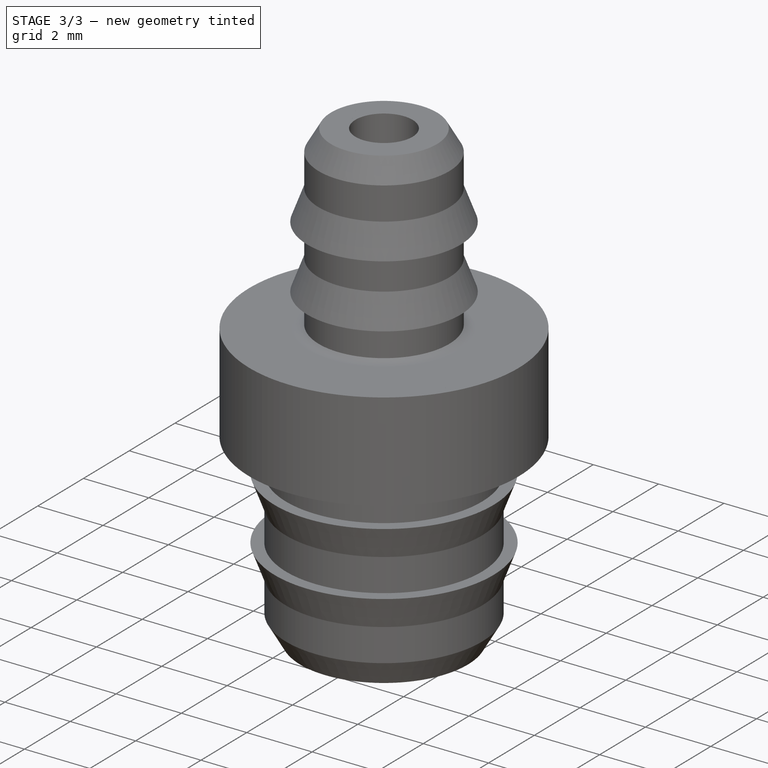
[diagram: stage 3 of 3 — iso view after this stage's code; geometry added in this stage tinted green]
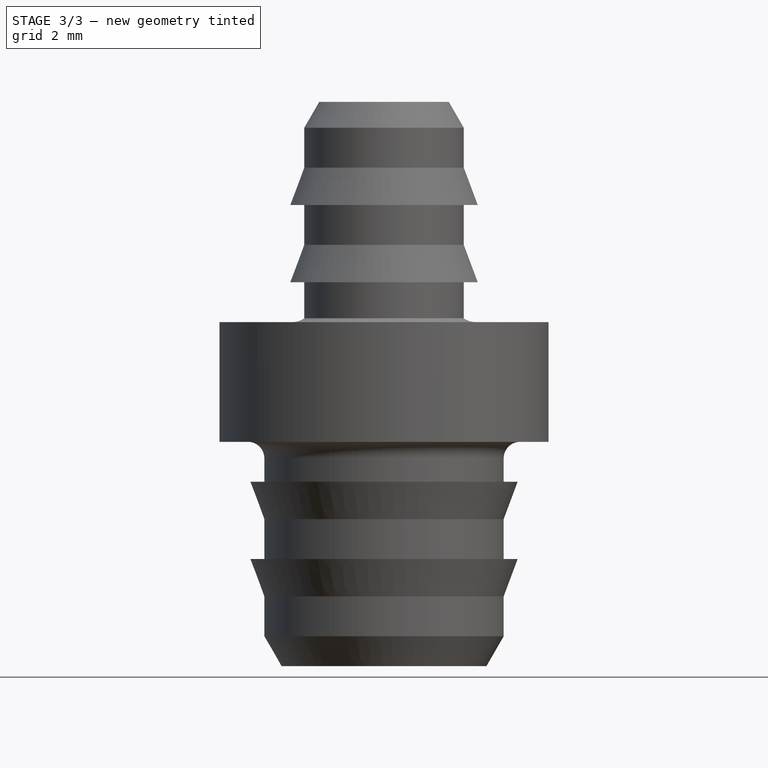
[diagram: stage 3 of 3 — front view after this stage's code; geometry added in this stage tinted green]
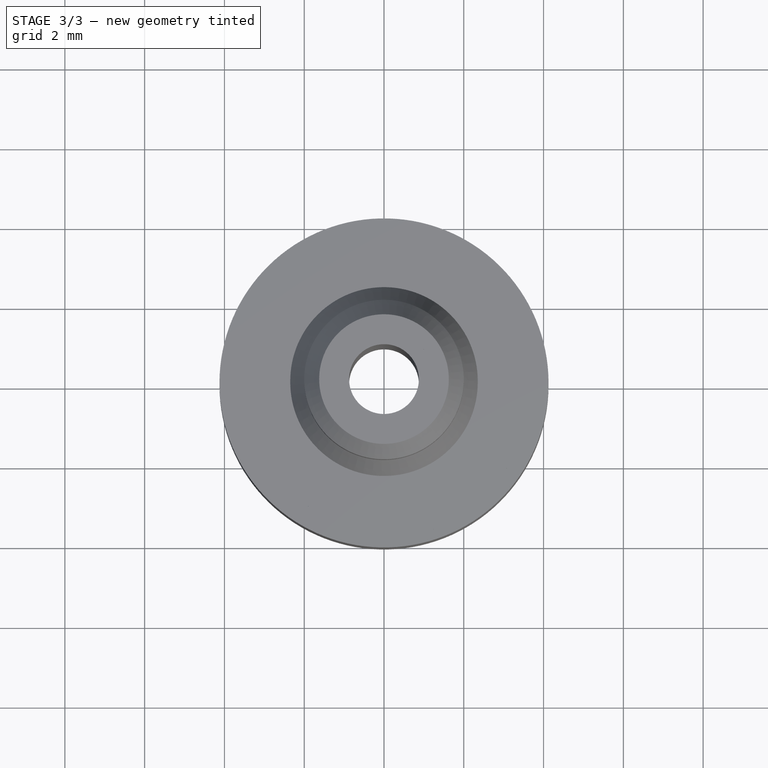
[diagram: stage 3 of 3 — top view after this stage's code; geometry added in this stage tinted green]
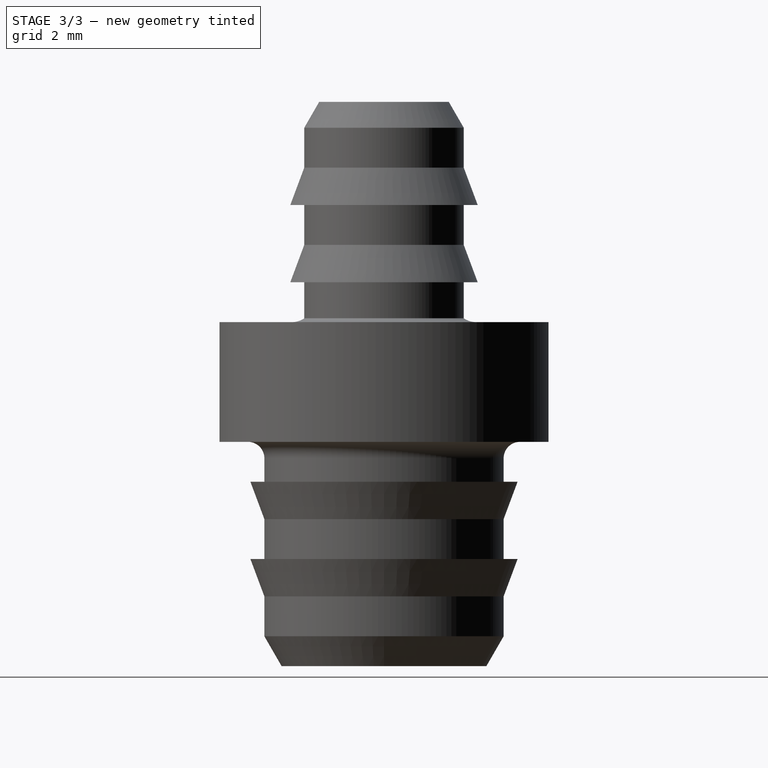
[diagram: stage 3 of 3 — right view after this stage's code; geometry added in this stage tinted green]
FEATURE [Spreadsheet::Sheet] Spreadsheet  label="3mm to 5mm barbed connector data"
  cells = A1='end_diameter_1; B1(end_diameter_1)=3.25; A2='end_diameter_2; B2(end_diameter_2)=5; A3='wall_thickness; B3(wall_thickness)=0.75; A4='barb_height; B4(barb_height)=0.35; A5='tubing_diameter_stretch; B5(tubing_diameter_stretch)=0.1
FEATURE [Sketcher::SketchObject] Sketch
  FullyConstrained = true
  Placement = pos=(0,0,0) rot=(1,0,0;1.5708rad)
  expr: Constraints[36] = <<3mm to 5mm barbed connector data>>.wall_thickness
  expr: Constraints[60] = Spreadsheet.wall_thickness / 2
  expr: Constraints[61] = Spreadsheet.barb_height
  expr: Constraints[62] = Spreadsheet.wall_thickness * 4 / 3
  expr: Constraints[67] = Spreadsheet.wall_thickness * 4 / 3
  expr: Constraints[76] = <<3mm to 5mm barbed connector data>>.end_diameter_2 / 2
  expr: Constraints[77] = <<3mm to 5mm barbed connector data>>.wall_thickness
  expr: Constraints[78] = <<3mm to 5mm barbed connector data>>.wall_thickness
  expr: Constraints[79] = <<3mm to 5mm barbed connector data>>.end_diameter_1 / 2
  expr: Constraints[83] = <<3mm to 5mm barbed connector data>>.end_diameter_2 / 2 + <<3mm to 5mm barbed connector data>>.wall_thickness * 1.5
  sketch-geometry (28):
    g0: LineSegment StartX=1.75 StartY=0 StartZ=0 EndX=2.06699 EndY=0 EndZ=0
    g1: LineSegment StartX=2.5 StartY=0.75 StartZ=0 EndX=2.5 EndY=1.75 EndZ=0
    g2: LineSegment StartX=2.5 StartY=1.75 StartZ=0 EndX=2.85 EndY=2.68675 EndZ=0
    g3: LineSegment StartX=2.85 StartY=2.68675 StartZ=0 EndX=2.5 EndY=2.68675 EndZ=0
    g4: LineSegment StartX=2.5 StartY=2.68675 StartZ=0 EndX=2.5 EndY=3.68675 EndZ=0
    g5: LineSegment StartX=2.5 StartY=3.68675 StartZ=0 EndX=2.85 EndY=4.6235 EndZ=0
    g6: LineSegment StartX=2.85 StartY=4.6235 StartZ=0 EndX=2.5 EndY=4.6235 EndZ=0
    g7: LineSegment StartX=2.5 StartY=4.6235 StartZ=0 EndX=2.5 EndY=5.6235 EndZ=0
    g8: LineSegment StartX=2.5 StartY=5.6235 StartZ=0 EndX=3.625 EndY=5.6235 EndZ=0
    g9: LineSegment StartX=3.625 StartY=5.6235 StartZ=0 EndX=3.625 EndY=6.6235 EndZ=0
    g10: LineSegment StartX=3.625 StartY=6.6235 StartZ=0 EndX=2.5 EndY=6.6235 EndZ=0
    g11: LineSegment StartX=2.5 StartY=6.6235 StartZ=0 EndX=2.5 EndY=7.6235 EndZ=0
    g12: LineSegment StartX=2.5 StartY=7.6235 StartZ=0 EndX=3.625 EndY=7.6235 EndZ=0
    g13: LineSegment StartX=3.625 StartY=7.6235 StartZ=0 EndX=3.625 EndY=8.6235 EndZ=0
    g14: LineSegment StartX=3.625 StartY=8.6235 StartZ=0 EndX=1.625 EndY=8.6235 EndZ=0
    g15: LineSegment StartX=1.625 StartY=8.6235 StartZ=0 EndX=1.625 EndY=9.6235 EndZ=0
    g16: LineSegment StartX=1.625 StartY=9.6235 StartZ=0 EndX=1.975 EndY=9.6235 EndZ=0
    g17: LineSegment StartX=1.975 StartY=9.6235 StartZ=0 EndX=1.625 EndY=10.5602 EndZ=0
    g18: LineSegment StartX=1.625 StartY=10.5602 StartZ=0 EndX=1.625 EndY=11.5602 EndZ=0
    g19: LineSegment StartX=1.625 StartY=11.5602 StartZ=0 EndX=1.975 EndY=11.5602 EndZ=0
    g20: LineSegment StartX=1.975 StartY=11.5602 StartZ=0 EndX=1.625 EndY=12.497 EndZ=0
    g21: LineSegment StartX=1.625 StartY=12.497 StartZ=0 EndX=1.625 EndY=13.497 EndZ=0
    g22: LineSegment StartX=1.25 StartY=14.1465 StartZ=0 EndX=0.875 EndY=14.1465 EndZ=0
    g23: LineSegment StartX=1.75 StartY=5.6235 StartZ=0 EndX=1.75 EndY=0 EndZ=0
    g24: LineSegment StartX=1.25 StartY=14.1465 StartZ=0 EndX=1.625 EndY=13.497 EndZ=0
    g25: LineSegment StartX=2.06699 StartY=0 StartZ=0 EndX=2.5 EndY=0.75 EndZ=0
    g26: LineSegment StartX=1.75 StartY=5.6235 StartZ=0 EndX=0.875 EndY=6.6235 EndZ=0
    g27: LineSegment StartX=0.875 StartY=6.6235 StartZ=0 EndX=0.875 EndY=14.1465 EndZ=0
  constraints (84):
    c: Vertical(g1)
    c: Coincident(g1,g2)
    c: Coincident(g2,g3)
    c: Horizontal(g3)
    c: Coincident(g3,g4)
    c: Vertical(g4)
    c: Coincident(g4,g5)
    c: Coincident(g5,g6)
    c: Horizontal(g6)
    c: Coincident(g6,g7)
    c: Vertical(g7)
    c: Coincident(g7,g8)
    c: Horizontal(g8)
    c: Coincident(g8,g9)
    c: Coincident(g9,g10)
    c: Horizontal(g10)
    c: Coincident(g10,g11)
    c: Coincident(g11,g12)
    c: Horizontal(g12)
    c: Coincident(g12,g13)
    c: Vertical(g13)
    c: Coincident(g13,g14)
    c: Horizontal(g14)
    c: Coincident(g14,g15)
    c: Vertical(g15)
    c: Coincident(g15,g16)
    c: Horizontal(g16)
    c: Coincident(g16,g17)
    c: Coincident(g17,g18)
    c: Vertical(g18)
    c: Coincident(g18,g19)
    c: Horizontal(g19)
    c: Coincident(g19,g20)
    c: Coincident(g20,g21)
    c: Vertical(g21)
    c: Vertical(g23)
    c: DistanceX(g22,g21) = 0.75
    c: Vertical(g18,g20)
    c: Vertical(g1,g3)
    c: Vertical(g4,g6)
    c: Vertical(g17,g15)
    c: Vertical(g11)
    c: Vertical(g5,g2)
    c: Vertical(g16,g19)
    c: Equal(g6,g16)
    c: Vertical(g9)
    c: Vertical(g9,g12)
    c: Equal(g9,g13)
    c: Equal(g1,g4)
    c: Equal(g7,g4)
    c: Equal(g21,g18)
    c: Equal(g18,g15)
    c: Equal(g15,g7)
    c: Equal(g20,g17)
    c: Equal(g17,g5)
    c: Equal(g5,g2)
    c: Equal(g13,g7)
    c: Horizontal(g22)
    c: Coincident(g22,g24)
    c: Coincident(g24,g21)
    c: DistanceX(g22,g22) = 0.375
    c: DistanceX(g19,g19) = 0.35
    c: DistanceY(g1,g1) = 1
    c: Coincident(g0,g25)
    c: Coincident(g25,g1)
    c: Horizontal(g0)
    c: Angle(g-1,g25) = 1.0472
    c: Distance(g2) = 1
    c: Angle(g22,g24) = 2.0944
    c: Horizontal(g-1,g0)
    c: Coincident(g23,g0)
    c: Horizontal(g23,g7)
    c: Coincident(g23,g26)
    c: Coincident(g26,g27)
    c: Coincident(g27,g22)
    c: Vertical(g27)
    c: DistanceX(g-1,g1) = 2.5
    c: DistanceX(g0,g1) = 0.75
    c: DistanceY(g0,g1) = 0.75
    c: DistanceX(g-1,g21) = 1.625
    c: Vertical(g7,g11)
    c: Equal(g11,g7)
    c: Horizontal(g26,g10)
    c: DistanceX(g-1,g13) = 3.625
FEATURE [PartDesign::Revolution] Revolution
  Angle = 360
  Angle2 = 60
  Axis = (0,2e-16,1)
  Base = (0,0,0)
  Placement = pos=(0,0,0) rot=(1,0,0;1.5708rad)
  Profile = -> Sketch
  ReferenceAxis = -> Sketch [V_Axis]
  Reversed = true
  Suppressed = false
  Type = 0
FEATURE [PartDesign::Body] Body  label="3mm to 5mm barbed connector"
  Group = -> [Sketch,Revolution]
  Origin = -> Origin
  Tip = -> Revolution
FEATURE [Sketcher::SketchObject] Sketch003
  FullyConstrained = true
  Placement = pos=(0,0,0) rot=(1,0,0;1.5708rad)
  expr: Constraints[36] = <<3mm to 5.25mm barbed connector data>>.wall_thickness
  expr: Constraints[60] = Spreadsheet001.wall_thickness / 2
  expr: Constraints[61] = Spreadsheet001.barb_height
  expr: Constraints[62] = Spreadsheet001.wall_thickness * 4 / 3
  expr: Constraints[67] = Spreadsheet001.wall_thickness * 4 / 3
  expr: Constraints[76] = <<3mm to 5.25mm barbed connector data>>.end_diameter_2 / 2
  expr: Constraints[77] = <<3mm to 5.25mm barbed connector data>>.wall_thickness
  expr: Constraints[78] = <<3mm to 5.25mm barbed connector data>>.wall_thickness
  expr: Constraints[79] = <<3mm to 5.25mm barbed connector data>>.end_diameter_1 / 2
  expr: Constraints[83] = <<3mm to 5.25mm barbed connector data>>.end_diameter_2 / 2 + <<3mm to 5.25mm barbed connector data>>.wall_thickness * 1.5
  sketch-geometry (28):
    g0: LineSegment StartX=1.875 StartY=0 StartZ=0 EndX=2.19199 EndY=0 EndZ=0
    g1: LineSegment StartX=2.625 StartY=0.75 StartZ=0 EndX=2.625 EndY=1.75 EndZ=0
    g2: LineSegment StartX=2.625 StartY=1.75 StartZ=0 EndX=2.975 EndY=2.68675 EndZ=0
    g3: LineSegment StartX=2.975 StartY=2.68675 StartZ=0 EndX=2.625 EndY=2.68675 EndZ=0
    g4: LineSegment StartX=2.625 StartY=2.68675 StartZ=0 EndX=2.625 EndY=3.68675 EndZ=0
    g5: LineSegment StartX=2.625 StartY=3.68675 StartZ=0 EndX=2.975 EndY=4.6235 EndZ=0
    g6: LineSegment StartX=2.975 StartY=4.6235 StartZ=0 EndX=2.625 EndY=4.6235 EndZ=0
    g7: LineSegment StartX=2.625 StartY=4.6235 StartZ=0 EndX=2.625 EndY=5.6235 EndZ=0
    g8: LineSegment StartX=2.625 StartY=5.6235 StartZ=0 EndX=3.75 EndY=5.6235 EndZ=0
    g9: LineSegment StartX=3.75 StartY=5.6235 StartZ=0 EndX=3.75 EndY=6.6235 EndZ=0
    g10: LineSegment StartX=3.75 StartY=6.6235 StartZ=0 EndX=2.625 EndY=6.6235 EndZ=0
    g11: LineSegment StartX=2.625 StartY=6.6235 StartZ=0 EndX=2.625 EndY=7.6235 EndZ=0
    g12: LineSegment StartX=2.625 StartY=7.6235 StartZ=0 EndX=3.75 EndY=7.6235 EndZ=0
    g13: LineSegment StartX=3.75 StartY=7.6235 StartZ=0 EndX=3.75 EndY=8.6235 EndZ=0
    g14: LineSegment StartX=3.75 StartY=8.6235 StartZ=0 EndX=1.625 EndY=8.6235 EndZ=0
    g15: LineSegment StartX=1.625 StartY=8.6235 StartZ=0 EndX=1.625 EndY=9.6235 EndZ=0
    g16: LineSegment StartX=1.625 StartY=9.6235 StartZ=0 EndX=1.975 EndY=9.6235 EndZ=0
    g17: LineSegment StartX=1.975 StartY=9.6235 StartZ=0 EndX=1.625 EndY=10.5602 EndZ=0
    g18: LineSegment StartX=1.625 StartY=10.5602 StartZ=0 EndX=1.625 EndY=11.5602 EndZ=0
    g19: LineSegment StartX=1.625 StartY=11.5602 StartZ=0 EndX=1.975 EndY=11.5602 EndZ=0
    g20: LineSegment StartX=1.975 StartY=11.5602 StartZ=0 EndX=1.625 EndY=12.497 EndZ=0
    g21: LineSegment StartX=1.625 StartY=12.497 StartZ=0 EndX=1.625 EndY=13.497 EndZ=0
    g22: LineSegment StartX=1.25 StartY=14.1465 StartZ=0 EndX=0.875 EndY=14.1465 EndZ=0
    g23: LineSegment StartX=1.875 StartY=5.6235 StartZ=0 EndX=1.875 EndY=0 EndZ=0
    g24: LineSegment StartX=1.25 StartY=14.1465 StartZ=0 EndX=1.625 EndY=13.497 EndZ=0
    g25: LineSegment StartX=2.19199 StartY=0 StartZ=0 EndX=2.625 EndY=0.75 EndZ=0
    g26: LineSegment StartX=1.875 StartY=5.6235 StartZ=0 EndX=0.875 EndY=6.6235 EndZ=0
    g27: LineSegment StartX=0.875 StartY=6.6235 StartZ=0 EndX=0.875 EndY=14.1465 EndZ=0
  constraints (84):
    c: Vertical(g1)
    c: Coincident(g1,g2)
    c: Coincident(g2,g3)
    c: Horizontal(g3)
    c: Coincident(g3,g4)
    c: Vertical(g4)
    c: Coincident(g4,g5)
    c: Coincident(g5,g6)
    c: Horizontal(g6)
    c: Coincident(g6,g7)
    c: Vertical(g7)
    c: Coincident(g7,g8)
    c: Horizontal(g8)
    c: Coincident(g8,g9)
    c: Coincident(g9,g10)
    c: Horizontal(g10)
    c: Coincident(g10,g11)
    c: Coincident(g11,g12)
    c: Horizontal(g12)
    c: Coincident(g12,g13)
    c: Vertical(g13)
    c: Coincident(g13,g14)
    c: Horizontal(g14)
    c: Coincident(g14,g15)
    c: Vertical(g15)
    c: Coincident(g15,g16)
    c: Horizontal(g16)
    c: Coincident(g16,g17)
    c: Coincident(g17,g18)
    c: Vertical(g18)
    c: Coincident(g18,g19)
    c: Horizontal(g19)
    c: Coincident(g19,g20)
    c: Coincident(g20,g21)
    c: Vertical(g21)
    c: Vertical(g23)
    c: DistanceX(g22,g21) = 0.75
    c: Vertical(g18,g20)
    c: Vertical(g1,g3)
    c: Vertical(g4,g6)
    c: Vertical(g17,g15)
    c: Vertical(g11)
    c: Vertical(g5,g2)
    c: Vertical(g16,g19)
    c: Equal(g6,g16)
    c: Vertical(g9)
    c: Vertical(g9,g12)
    c: Equal(g9,g13)
    c: Equal(g1,g4)
    c: Equal(g7,g4)
    c: Equal(g21,g18)
    c: Equal(g18,g15)
    c: Equal(g15,g7)
    c: Equal(g20,g17)
    c: Equal(g17,g5)
    c: Equal(g5,g2)
    c: Equal(g13,g7)
    c: Horizontal(g22)
    c: Coincident(g22,g24)
    c: Coincident(g24,g21)
    c: DistanceX(g22,g22) = 0.375
    c: DistanceX(g19,g19) = 0.35
    c: DistanceY(g1,g1) = 1
    c: Coincident(g0,g25)
    c: Coincident(g25,g1)
    c: Horizontal(g0)
    c: Angle(g-1,g25) = 1.0472
    c: Distance(g2) = 1
    c: Angle(g22,g24) = 2.0944
    c: Horizontal(g-1,g0)
    c: Coincident(g23,g0)
    c: Horizontal(g23,g7)
    c: Coincident(g23,g26)
    c: Coincident(g26,g27)
    c: Coincident(g27,g22)
    c: Vertical(g27)
    c: DistanceX(g-1,g1) = 2.625
    c: DistanceX(g0,g1) = 0.75
    c: DistanceY(g0,g1) = 0.75
    c: DistanceX(g-1,g21) = 1.625
    c: Vertical(g7,g11)
    c: Equal(g11,g7)
    c: Horizontal(g26,g10)
    c: DistanceX(g-1,g13) = 3.75
FEATURE [PartDesign::Revolution] Revolution002
  Angle = 360
  Angle2 = 60
  Axis = (0,2e-16,1)
  Base = (0,0,0)
  Placement = pos=(0,0,0) rot=(1,0,0;1.5708rad)
  Profile = -> Sketch003
  ReferenceAxis = -> Sketch003 [V_Axis]
  Reversed = true
  Suppressed = false
  Type = 0
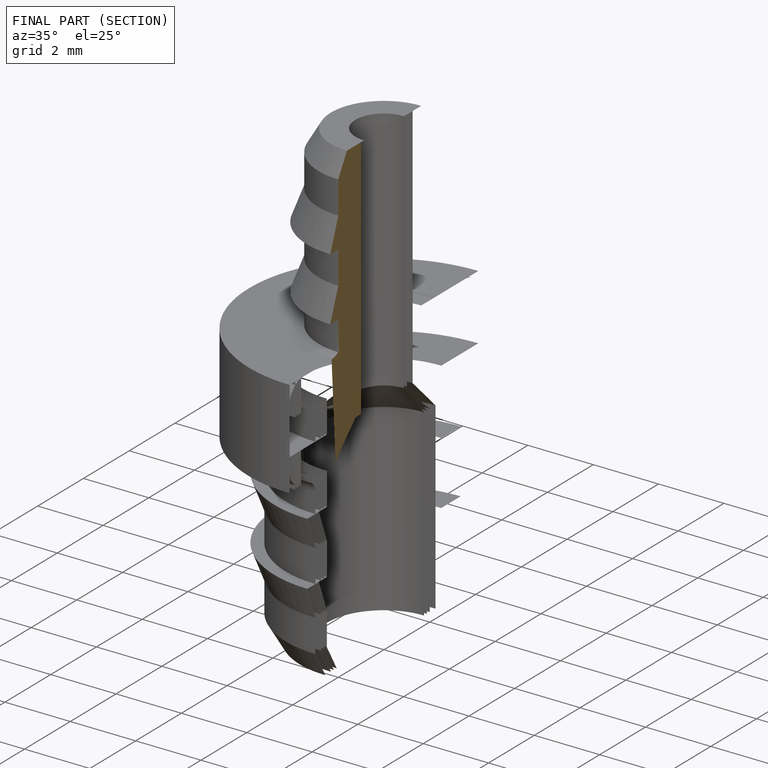
[diagram: finished part — half-section view (interior)]
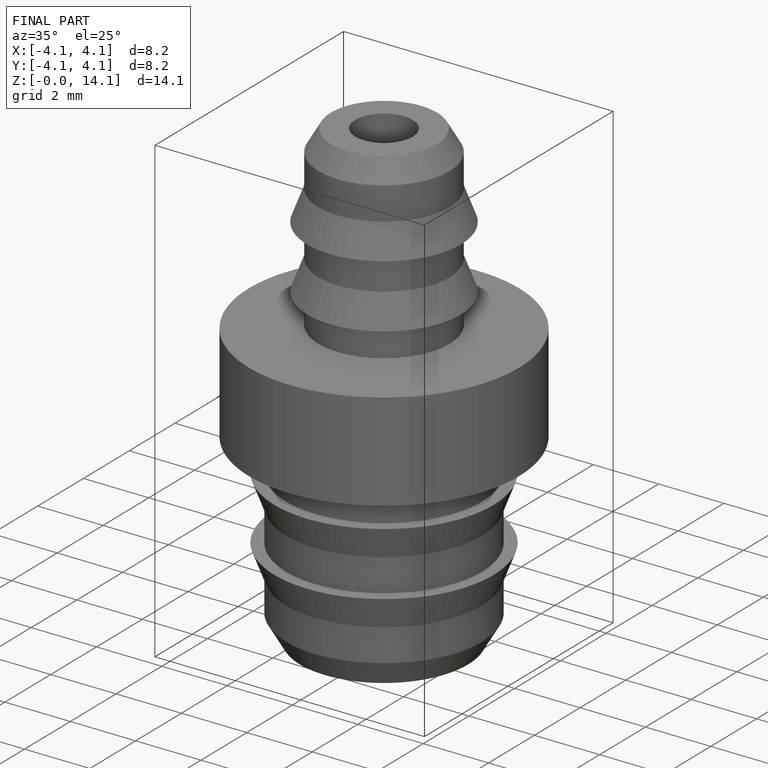
[diagram: finished part — iso view with bounding-box wireframe]
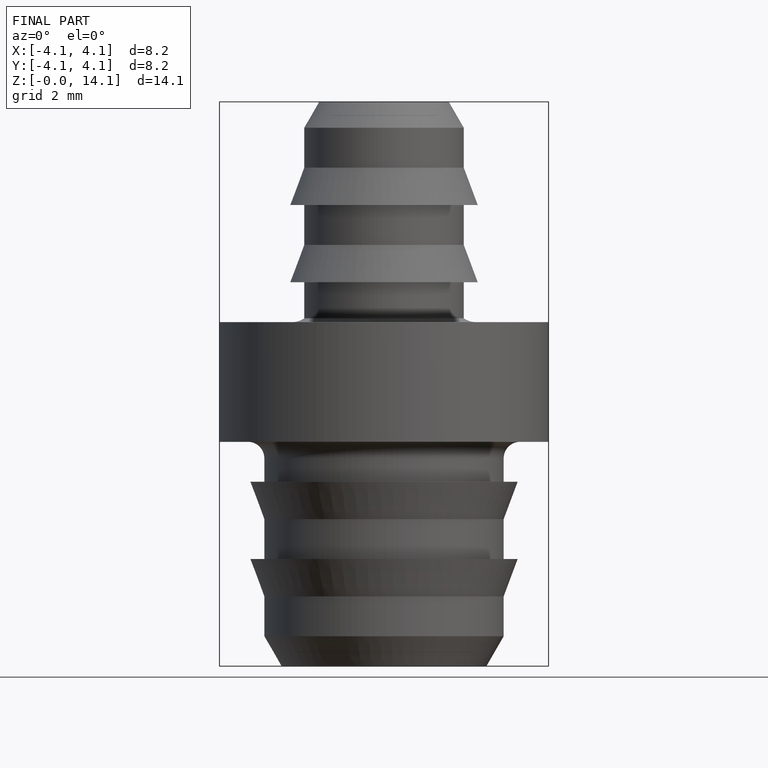
[diagram: finished part — front view with bounding-box wireframe]
